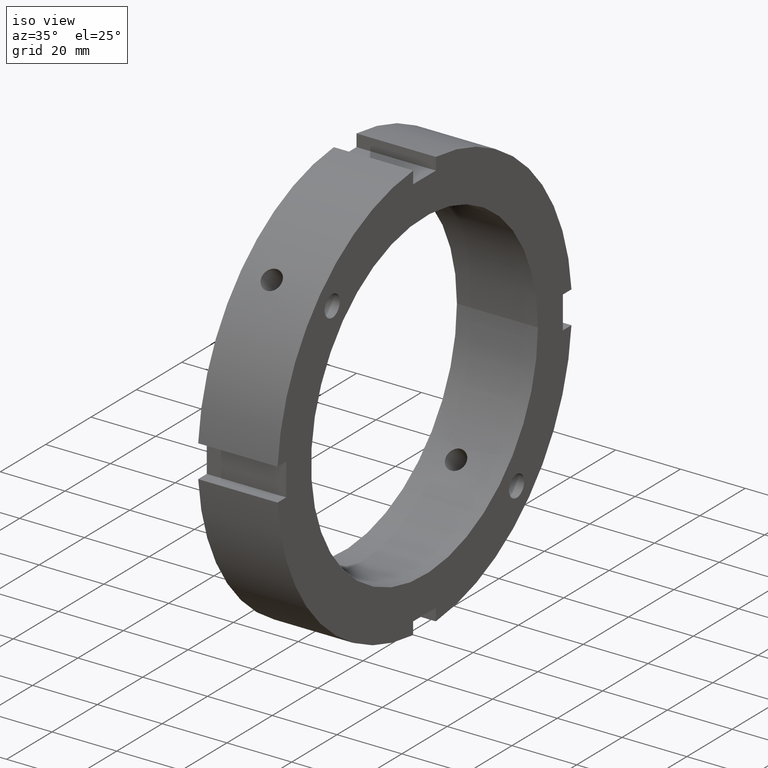
[diagram: clean part render]
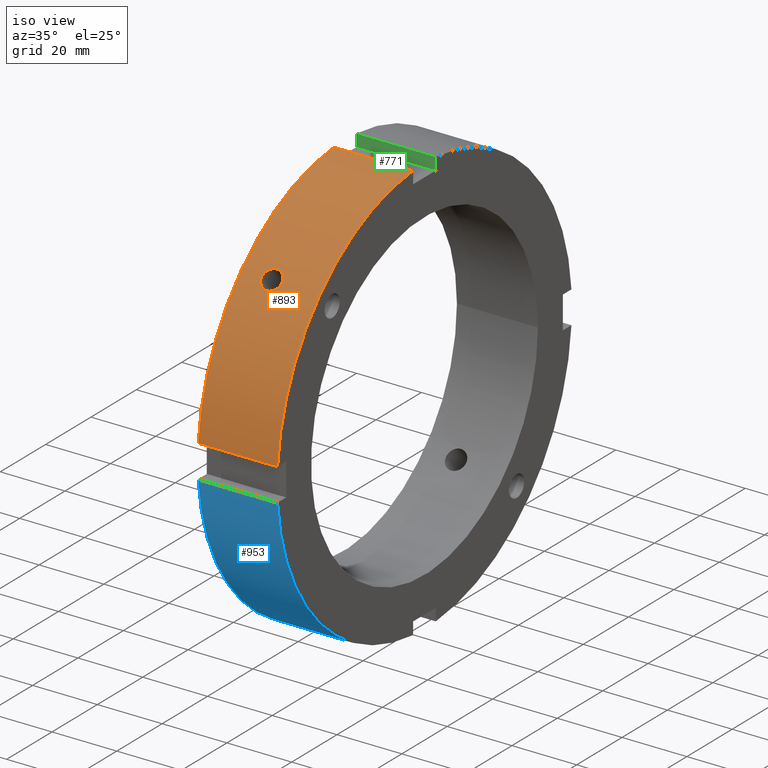
[diagram: same view with three faces highlighted in distinct colors, each labeled with its STEP entity id]
A machine part, iso view with three faces highlighted in distinct colors.
Their STEP definitions:

[orange] entity #893 — the highlighted cylindrical surface (partial cylindrical patch) has radius 65 mm, axis along (1, 0, 0).
#209=CARTESIAN_POINT('',(9.999999999999986,-48.101670532351861,43.717608488995282));
#210=VERTEX_POINT('',#209);
#211=CARTESIAN_POINT('',(9.999999999999986,-48.101670532351847,43.717608488995296));
#212=CARTESIAN_POINT('',(9.610693708128087,-48.101670532351847,43.717608488995296));
#213=CARTESIAN_POINT('',(9.195478629299606,-48.049377660548302,43.775362704912517));
#214=CARTESIAN_POINT('',(8.431720163691333,-47.835526787609616,44.008947390728309));
#215=CARTESIAN_POINT('',(8.083171773791658,-47.673829087285277,44.184633561528699));
#216=CARTESIAN_POINT('',(7.532766230964545,-47.297766120592613,44.586961578307474));
#217=CARTESIAN_POINT('',(7.294199772129239,-47.058295938169472,44.840413287239556));
#218=CARTESIAN_POINT('',(6.977815022536161,-46.528096066548201,45.390331093704752));
#219=CARTESIAN_POINT('',(6.899999999999986,-46.237221847940262,45.686659706310913));
#220=CARTESIAN_POINT('',(6.899999999999986,-45.686659706310877,46.237221847940297));
#221=CARTESIAN_POINT('',(6.97781502253615,-45.390331093704717,46.528096066548237));
#222=CARTESIAN_POINT('',(7.294199772129227,-44.840413287239535,47.058295938169501));
#223=CARTESIAN_POINT('',(7.532766230964545,-44.586961578307424,47.297766120592627));
#224=CARTESIAN_POINT('',(8.083171773791655,-44.184633561528663,47.673829087285299));
#225=CARTESIAN_POINT('',(8.431720163691324,-44.008947390728267,47.835526787609652));
#226=CARTESIAN_POINT('',(9.195478629299599,-43.775362704912482,48.049377660548338));
#227=CARTESIAN_POINT('',(9.610693708128089,-43.717608488995261,48.101670532351889));
#228=CARTESIAN_POINT('',(10.389306291871884,-43.717608488995261,48.101670532351889));
#229=CARTESIAN_POINT('',(10.804521370700371,-43.775362704912482,48.049377660548338));
#230=CARTESIAN_POINT('',(11.568279836308644,-44.008947390728267,47.835526787609652));
#231=CARTESIAN_POINT('',(11.916828226208318,-44.184633561528663,47.673829087285299));
#232=CARTESIAN_POINT('',(12.467233769035428,-44.586961578307424,47.297766120592627));
#233=CARTESIAN_POINT('',(12.705800227870743,-44.840413287239528,47.058295938169515));
#234=CARTESIAN_POINT('',(13.022184977463818,-45.390331093704717,46.528096066548244));
#235=CARTESIAN_POINT('',(13.099999999999987,-45.686659706310877,46.237221847940297));
#236=CARTESIAN_POINT('',(13.099999999999987,-46.237221847940262,45.686659706310913));
#237=CARTESIAN_POINT('',(13.022184977463811,-46.528096066548201,45.390331093704752));
#238=CARTESIAN_POINT('',(12.705800227870734,-47.058295938169472,44.840413287239556));
#239=CARTESIAN_POINT('',(12.467233769035428,-47.297766120592613,44.586961578307474));
#240=CARTESIAN_POINT('',(11.916828226208317,-47.673829087285277,44.184633561528699));
#241=CARTESIAN_POINT('',(11.568279836308641,-47.835526787609624,44.008947390728309));
#242=CARTESIAN_POINT('',(10.804521370700368,-48.049377660548309,43.775362704912524));
#243=CARTESIAN_POINT('',(10.389306291871886,-48.101670532351847,43.717608488995296));
#244=CARTESIAN_POINT('',(9.999999999999986,-48.101670532351847,43.717608488995296));
#245=B_SPLINE_CURVE_WITH_KNOTS('',3,(#211,#212,#213,#214,#215,#216,#217,#218,#219,#220,#221,#222,#223,#224,#225,#226,#227,#228,#229,#230,#231,#232,#233,#234,#235,#236,#237,#238,#239,#240,#241,#242,#243,#244),.UNSPECIFIED.,.T.,.U.,(4,2,2,2,2,2,2,2,2,2,2,2,2,2,2,2,4),(0.0,0.11679188756157,0.233583775123139,0.350375642266358,0.467167509409576,0.583959376552794,0.700751243696012,0.817543131257582,0.934335018819151,1.051126906380721,1.167918793942291,1.284710661085509,1.401502528228727,1.518294395371945,1.635086262515163,1.751878150076733,1.868670037638303),.UNSPECIFIED.);
#246=EDGE_CURVE('',#210,#210,#245,.T.);
#637=CARTESIAN_POINT('',(0.499999999999985,-64.807406984078597,5.000000000000005));
#638=VERTEX_POINT('',#637);
#653=CARTESIAN_POINT('',(24.999999999999982,-64.807406984078597,5.000000000000005));
#654=VERTEX_POINT('',#653);
#661=CARTESIAN_POINT('',(0.499999999999986,-64.807406984078597,5.000000000000004));
#662=DIRECTION('',(1.0,0.0,0.0));
#663=VECTOR('',#662,24.499999999999996);
#664=LINE('',#661,#663);
#665=EDGE_CURVE('',#638,#654,#664,.T.);
#777=CARTESIAN_POINT('',(0.499999999999985,-4.999999999999993,64.807406984078597));
#778=VERTEX_POINT('',#777);
#787=CARTESIAN_POINT('',(24.999999999999982,-4.999999999999993,64.807406984078597));
#788=VERTEX_POINT('',#787);
#789=CARTESIAN_POINT('',(24.999999999999982,-4.999999999999993,64.807406984078597));
#790=DIRECTION('',(-1.0,0.0,0.0));
#791=VECTOR('',#790,24.499999999999996);
#792=LINE('',#789,#791);
#793=EDGE_CURVE('',#788,#778,#792,.T.);
#867=CARTESIAN_POINT('',(12.749999999999984,0.0,0.0));
#868=DIRECTION('',(1.0,0.0,0.0));
#869=DIRECTION('',(0.0,1.0,0.0));
#870=AXIS2_PLACEMENT_3D('',#867,#868,#869);
#871=CYLINDRICAL_SURFACE('',#870,65.0);
#872=ORIENTED_EDGE('',*,*,#665,.T.);
#873=CARTESIAN_POINT('',(24.999999999999982,0.0,0.0));
#874=DIRECTION('',(1.0,0.0,0.0));
#875=DIRECTION('',(0.0,1.0,0.0));
#876=AXIS2_PLACEMENT_3D('',#873,#874,#875);
#877=CIRCLE('',#876,65.0);
#878=EDGE_CURVE('',#788,#654,#877,.T.);
#879=ORIENTED_EDGE('',*,*,#878,.F.);
#880=ORIENTED_EDGE('',*,*,#793,.T.);
#881=CARTESIAN_POINT('',(0.499999999999985,0.0,0.0));
#882=DIRECTION('',(1.0,0.0,0.0));
#883=DIRECTION('',(0.0,1.0,0.0));
#884=AXIS2_PLACEMENT_3D('',#881,#882,#883);
#885=CIRCLE('',#884,65.0);
#886=EDGE_CURVE('',#778,#638,#885,.T.);
#887=ORIENTED_EDGE('',*,*,#886,.T.);
#888=EDGE_LOOP('',(#872,#879,#880,#887));
#889=FACE_OUTER_BOUND('',#888,.T.);
#890=ORIENTED_EDGE('',*,*,#246,.T.);
#891=EDGE_LOOP('',(#890));
#892=FACE_BOUND('',#891,.T.);
#893=ADVANCED_FACE('',(#889,#892),#871,.T.);

[blue] entity #953 — the highlighted cylindrical surface (partial cylindrical patch) has radius 65 mm, axis along (1, 0, 0).
#535=CARTESIAN_POINT('',(0.499999999999985,-5.000000000000009,-64.807406984078597));
#536=VERTEX_POINT('',#535);
#551=CARTESIAN_POINT('',(24.999999999999982,-5.000000000000009,-64.807406984078597));
#552=VERTEX_POINT('',#551);
#559=CARTESIAN_POINT('',(0.499999999999986,-5.000000000000009,-64.807406984078597));
#560=DIRECTION('',(1.0,0.0,0.0));
#561=VECTOR('',#560,24.499999999999996);
#562=LINE('',#559,#561);
#563=EDGE_CURVE('',#536,#552,#562,.T.);
#675=CARTESIAN_POINT('',(0.499999999999985,-64.807406984078597,-4.999999999999989));
#676=VERTEX_POINT('',#675);
#685=CARTESIAN_POINT('',(24.999999999999982,-64.807406984078597,-4.999999999999989));
#686=VERTEX_POINT('',#685);
#687=CARTESIAN_POINT('',(24.999999999999982,-64.807406984078597,-4.999999999999989));
#688=DIRECTION('',(-1.0,0.0,0.0));
#689=VECTOR('',#688,24.499999999999996);
#690=LINE('',#687,#689);
#691=EDGE_CURVE('',#686,#676,#690,.T.);
#930=CARTESIAN_POINT('',(12.749999999999984,0.0,0.0));
#931=DIRECTION('',(1.0,0.0,0.0));
#932=DIRECTION('',(0.0,1.0,0.0));
#933=AXIS2_PLACEMENT_3D('',#930,#931,#932);
#934=CYLINDRICAL_SURFACE('',#933,65.0);
#935=ORIENTED_EDGE('',*,*,#563,.T.);
#936=CARTESIAN_POINT('',(24.999999999999982,0.0,0.0));
#937=DIRECTION('',(1.0,0.0,0.0));
#938=DIRECTION('',(0.0,1.0,0.0));
#939=AXIS2_PLACEMENT_3D('',#936,#937,#938);
#940=CIRCLE('',#939,65.0);
#941=EDGE_CURVE('',#686,#552,#940,.T.);
#942=ORIENTED_EDGE('',*,*,#941,.F.);
#943=ORIENTED_EDGE('',*,*,#691,.T.);
#944=CARTESIAN_POINT('',(0.499999999999985,0.0,0.0));
#945=DIRECTION('',(1.0,0.0,0.0));
#946=DIRECTION('',(0.0,1.0,0.0));
#947=AXIS2_PLACEMENT_3D('',#944,#945,#946);
#948=CIRCLE('',#947,65.0);
#949=EDGE_CURVE('',#676,#536,#948,.T.);
#950=ORIENTED_EDGE('',*,*,#949,.T.);
#951=EDGE_LOOP('',(#935,#942,#943,#950));
#952=FACE_OUTER_BOUND('',#951,.T.);
#953=ADVANCED_FACE('',(#952),#934,.T.);

[green] entity #771 — the highlighted planar face has unit normal (0, 1, 0).
#732=CARTESIAN_POINT('',(24.999999999999982,5.0,61.0));
#733=DIRECTION('',(0.0,1.0,0.0));
#734=DIRECTION('',(-1.0,0.0,0.0));
#735=AXIS2_PLACEMENT_3D('',#732,#733,#734);
#736=PLANE('',#735);
#737=CARTESIAN_POINT('',(0.499999999999985,5.0,61.0));
#738=VERTEX_POINT('',#737);
#739=CARTESIAN_POINT('',(0.499999999999985,5.000000000000001,64.807406984078597));
#740=VERTEX_POINT('',#739);
#741=CARTESIAN_POINT('',(0.499999999999985,5.000000000000002,61.0));
#742=DIRECTION('',(0.0,0.0,1.0));
#743=VECTOR('',#742,3.807406984078597);
#744=LINE('',#741,#743);
#745=EDGE_CURVE('',#738,#740,#744,.T.);
#746=ORIENTED_EDGE('',*,*,#745,.F.);
#747=CARTESIAN_POINT('',(24.999999999999982,5.0,61.0));
#748=VERTEX_POINT('',#747);
#749=CARTESIAN_POINT('',(24.999999999999982,5.0,61.0));
#750=DIRECTION('',(-1.0,0.0,0.0));
#751=VECTOR('',#750,24.499999999999996);
#752=LINE('',#749,#751);
#753=EDGE_CURVE('',#748,#738,#752,.T.);
#754=ORIENTED_EDGE('',*,*,#753,.F.);
#755=CARTESIAN_POINT('',(24.999999999999982,5.000000000000001,64.807406984078597));
#756=VERTEX_POINT('',#755);
#757=CARTESIAN_POINT('',(24.999999999999982,5.000000000000002,64.807406984078597));
#758=DIRECTION('',(0.0,0.0,-1.0));
#759=VECTOR('',#758,3.807406984078597);
#760=LINE('',#757,#759);
#761=EDGE_CURVE('',#756,#748,#760,.T.);
#762=ORIENTED_EDGE('',*,*,#761,.F.);
#763=CARTESIAN_POINT('',(0.499999999999986,5.0,64.807406984078597));
#764=DIRECTION('',(1.0,0.0,0.0));
#765=VECTOR('',#764,24.499999999999996);
#766=LINE('',#763,#765);
#767=EDGE_CURVE('',#740,#756,#766,.T.);
#768=ORIENTED_EDGE('',*,*,#767,.F.);
#769=EDGE_LOOP('',(#746,#754,#762,#768));
#770=FACE_OUTER_BOUND('',#769,.T.);
#771=ADVANCED_FACE('',(#770),#736,.F.);